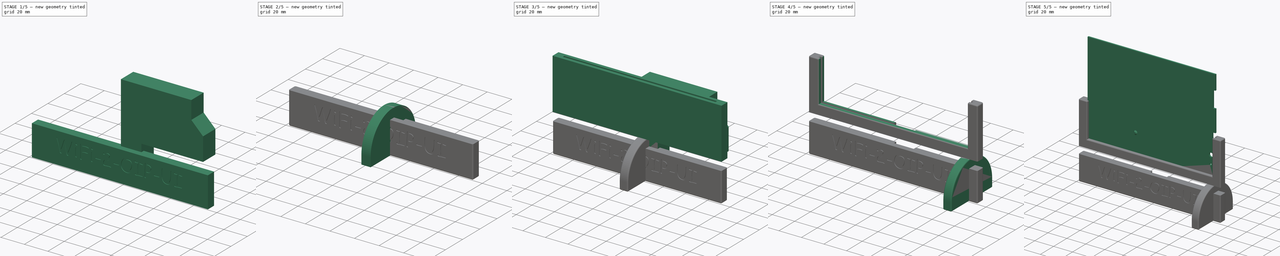
[diagram: build sequence overview — one tinted view per stage of 5, left to right]
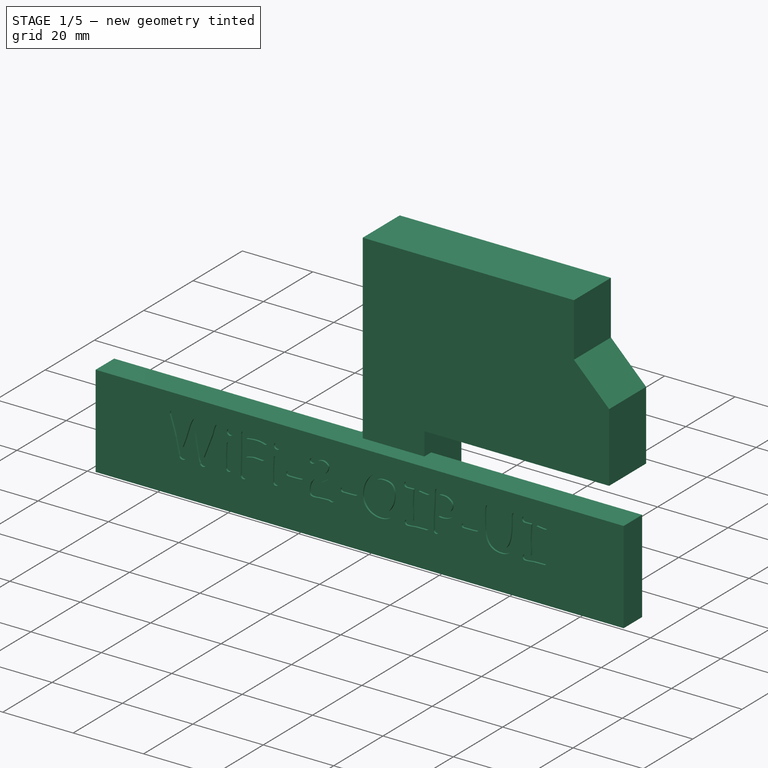
[diagram: stage 1 of 5 — iso view after this stage's code; geometry added in this stage tinted green]
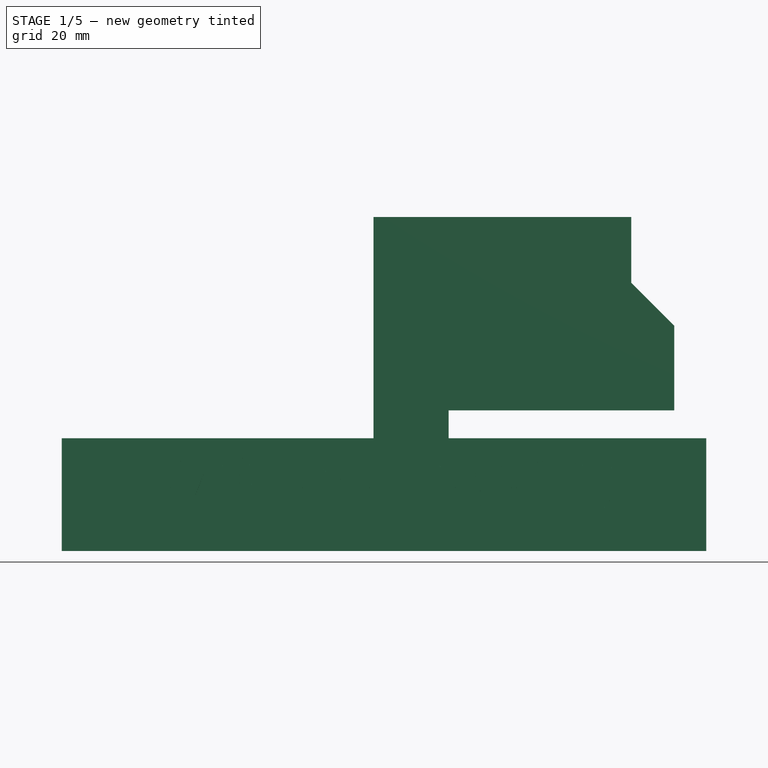
[diagram: stage 1 of 5 — front view after this stage's code; geometry added in this stage tinted green]
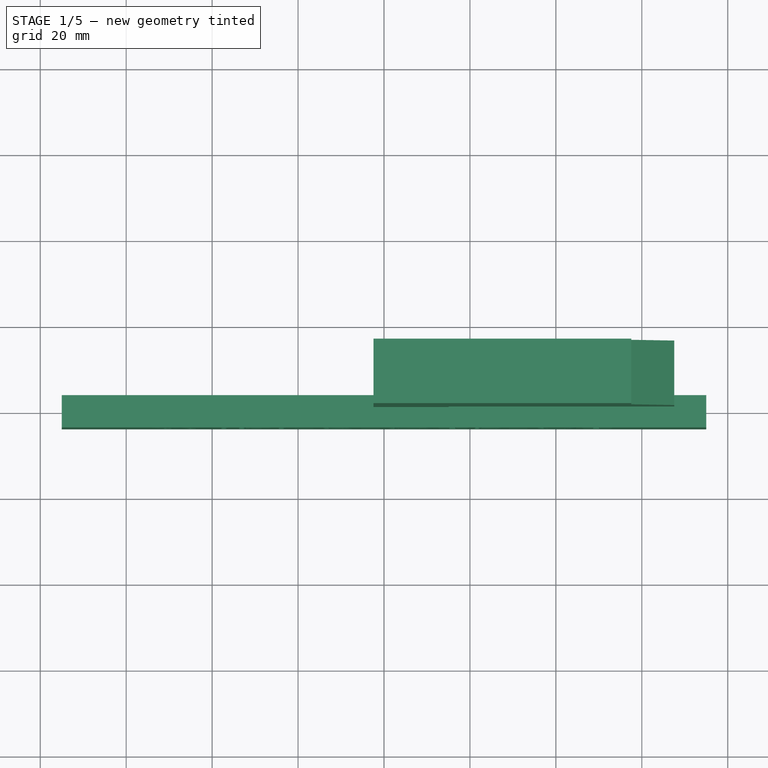
[diagram: stage 1 of 5 — top view after this stage's code; geometry added in this stage tinted green]
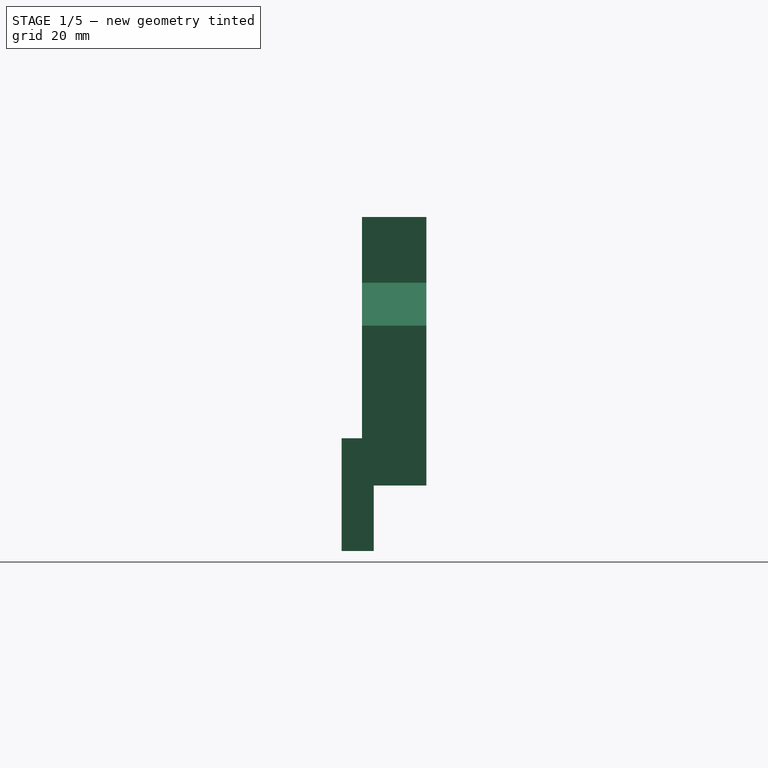
[diagram: stage 1 of 5 — right view after this stage's code; geometry added in this stage tinted green]
FCSTD DOCUMENT  (FreeCAD 0.21R33668 +26 (Git))
Label: WiFi-2-OIP-UI stand
License: All rights reserved
LicenseURL: http://en.wikipedia.org/wiki/All_rights_reserved
objects: Sketcher::SketchObject×9, PartDesign::Body×9, PartDesign::Pad×7, PartDesign::Pocket×3, PartDesign::Chamfer×3, PartDesign::Fillet×3, PartDesign::FeatureBase×3, PartDesign::Boolean×2, App::DocumentObjectGroup×1, Part::Part2DObjectPython×1
note: 56 computed .brp shape members not serialized (recipe doc carries the construction recipe); baked Part::Feature solids carry a one-line shape summary decoded from their .brp

FEATURE [Sketcher::SketchObject] Sketch007
  FullyConstrained = true
  MapMode = 5
  Placement = pos=(0,0,0) rot=(0.57735,0.57735,0.57735;2.0944rad)
  Support = -> [YZ_Plane005]
  sketch-geometry (5):
    g0: LineSegment StartX=-3.75 StartY=-7.5 StartZ=0 EndX=3.75 EndY=-7.5 EndZ=0
    g1: LineSegment StartX=3.75 StartY=-7.5 StartZ=0 EndX=3.75 EndY=-33.75 EndZ=0
    g2: LineSegment StartX=3.75 StartY=-33.75 StartZ=0 EndX=-3.75 EndY=-33.75 EndZ=0
    g3: LineSegment StartX=-3.75 StartY=-33.75 StartZ=0 EndX=-3.75 EndY=-7.5 EndZ=0
    g4: LineSegment StartX=-22.5 StartY=-33.75 StartZ=0 EndX=0 EndY=-33.75 EndZ=0
  constraints (15):
    c: Coincident(g0,g1)
    c: Coincident(g1,g2)
    c: Coincident(g2,g3)
    c: Coincident(g3,g0)
    c: Horizontal(g0)
    c: Vertical(g1)
    c: Vertical(g3)
    c: Symmetric(g1,g2,g-2)
    c: PointOnObject(g4,g-2)
    c: Horizontal(g4)
    c: DistanceY(g4) = -33.75
    c: DistanceX(g4) = -22.5
    c: PointOnObject(g2,g4)
    c: DistanceX(g0,g0) = 7.5
    c: DistanceY(g0) = -7.5
FEATURE [PartDesign::Pad] Pad005
  Direction = (1,-2e-16,3e-16)
  Length = 150
  Length2 = 10
  Midplane = true
  Placement = pos=(0,0,0) rot=(0.57735,0.57735,0.57735;2.0944rad)
  Profile = -> Sketch007
  ReferenceAxis = -> Sketch007 [N_Axis]
  Type = 0
FEATURE [Part::Part2DObjectPython] ShapeString  # Draft 2D object (typed FeaturePython)
  FontFile = <path>
  MakeFace = true
  Placement = pos=(-55,-3.75,-23.59) rot=(1,0,0;1.5708rad)
  Size = 14
  String = WiFi-2-OIP-UI
  Tracking = 0
FEATURE [PartDesign::Pocket] Pocket002
  BaseFeature = -> Pad005
  Direction = (4e-16,1,0)
  Length = 0.5
  Length2 = 5
  Placement = pos=(0,0,0) rot=(0.57735,0.57735,0.57735;2.0944rad)
  Profile = -> ShapeString
  ReferenceAxis = -> ShapeString [N_Axis]
  Type = 0
FEATURE [Sketcher::SketchObject] Sketch008
  FullyConstrained = true
  MapMode = 5
  Placement = pos=(0,0,0) rot=(1,0,0;1.5708rad)
  Support = -> [XZ_Plane006]
  sketch-geometry (9):
    g0: LineSegment StartX=57.55 StartY=44 StartZ=0 EndX=-2.45 EndY=44 EndZ=0
    g1: LineSegment StartX=-2.45 StartY=44 StartZ=0 EndX=-2.45 EndY=-1 EndZ=0
    g2: LineSegment StartX=15.05 StartY=-1 StartZ=0 EndX=67.55 EndY=-1 EndZ=0
    g3: LineSegment StartX=67.55 StartY=-1 StartZ=0 EndX=67.55 EndY=18.7 EndZ=0
    g4: LineSegment StartX=-2.45 StartY=-1 StartZ=0 EndX=-2.45 EndY=-18.5 EndZ=0
    g5: LineSegment StartX=-2.45 StartY=-18.5 StartZ=0 EndX=15.05 EndY=-18.5 EndZ=0
    g6: LineSegment StartX=15.05 StartY=-18.5 StartZ=0 EndX=15.05 EndY=-1 EndZ=0
    g7: LineSegment StartX=57.55 StartY=28.7 StartZ=0 EndX=57.55 EndY=44 EndZ=0
    g8: LineSegment StartX=57.55 StartY=28.7 StartZ=0 EndX=67.55 EndY=18.7 EndZ=0
  constraints (27):
    c: Coincident(g0,g1)
    c: Coincident(g2,g3)
    c: Horizontal(g0)
    c: Horizontal(g2)
    c: Vertical(g1)
    c: Vertical(g3)
    c: DistanceY(g1,g1) = 45
    c: DistanceY(g1,g-1) = 1
    c: Coincident(g4,g1)
    c: Vertical(g4)
    c: Coincident(g5,g4)
    c: Horizontal(g5)
    c: Coincident(g6,g5)
    c: Vertical(g6)
    c: Coincident(g2,g6)
    c: PointOnObject(g1,g2)
    c: Equal(g5,g6)
    c: DistanceY(g6,g6) = 17.5
    c: DistanceX(g1,g2) = 70
    c: Vertical(g7)
    c: Coincident(g0,g7)
    c: DistanceX(g0,g-1) = 2.45
    c: Angle(g-2,g8) = 0.785398
    c: Coincident(g3,g8)
    c: Coincident(g7,g8)
    c: DistanceX(g0) = 57.55
    c: DistanceY(g3,g3) = 19.7
FEATURE [PartDesign::Pad] Pad006
  Direction = (0,-1,-2e-16)
  Length = 15
  Length2 = 10
  Placement = pos=(0,0,0) rot=(1,0,0;1.5708rad)
  Profile = -> Sketch008
  ReferenceAxis = -> Sketch008 [N_Axis]
  Reversed = true
  Type = 0
FEATURE [PartDesign::Body] Body006  label="Electronics cutter"
  Group = -> [Sketch008,Pad006]
  Origin = -> Origin006
  Placement = pos=(0,1,0) rot=(0,0,1;0rad)
  Tip = -> Pad006
FEATURE [PartDesign::FeatureBase] Clone001
  BaseFeature = -> Body006
  Placement = pos=(0,1,0) rot=(0,0,1;0rad)
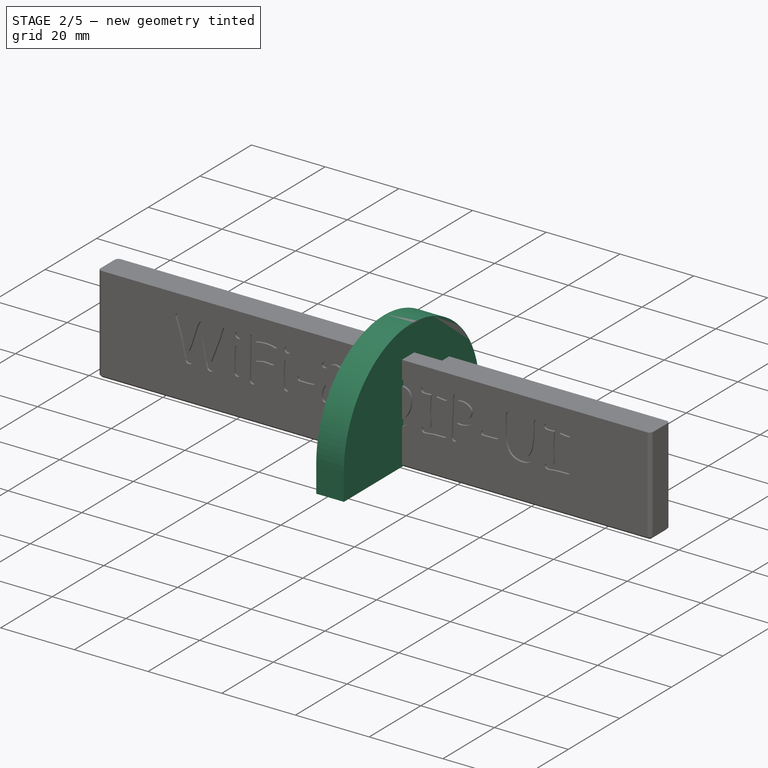
[diagram: stage 2 of 5 — iso view after this stage's code; geometry added in this stage tinted green]
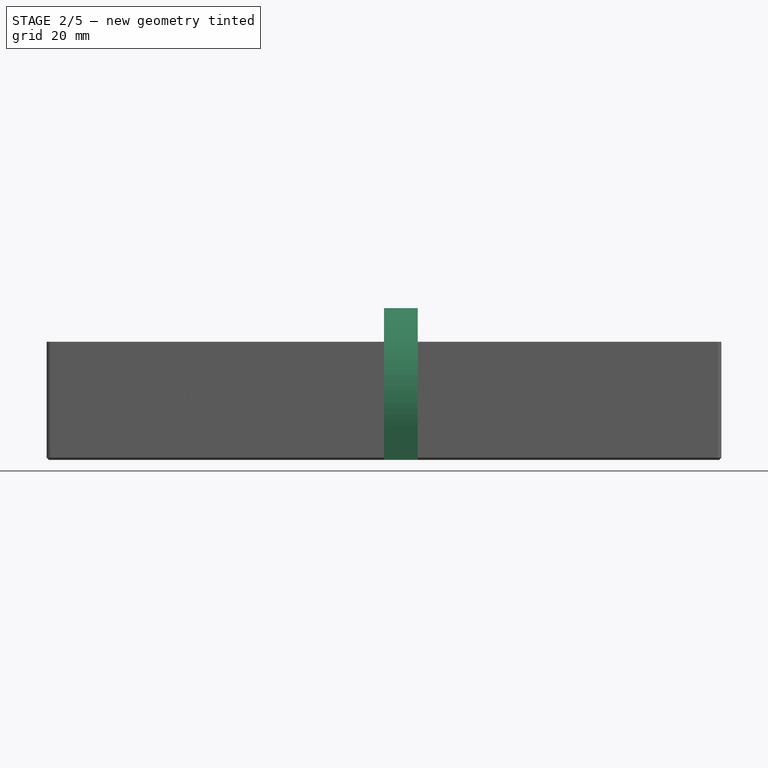
[diagram: stage 2 of 5 — front view after this stage's code; geometry added in this stage tinted green]
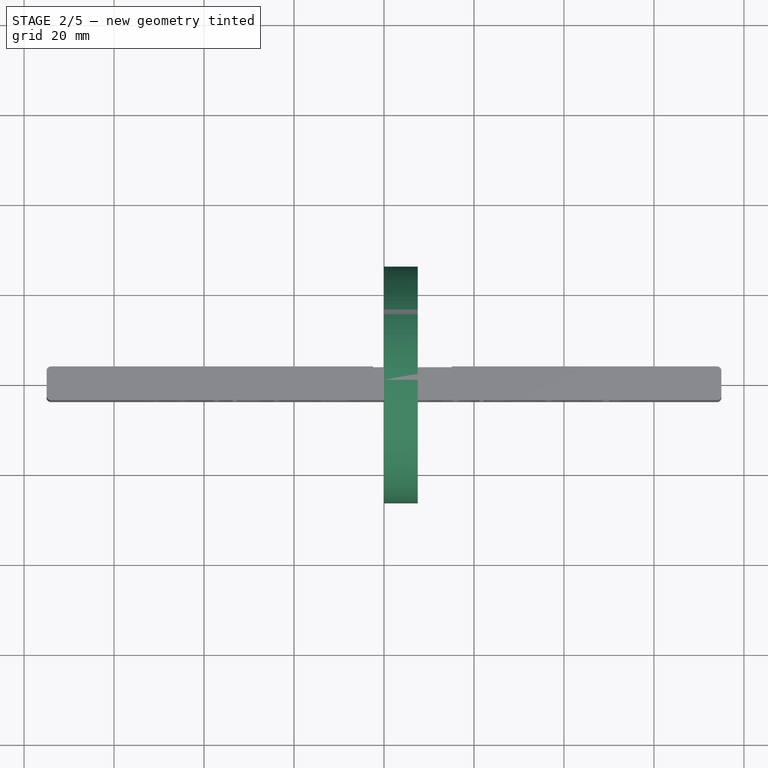
[diagram: stage 2 of 5 — top view after this stage's code; geometry added in this stage tinted green]
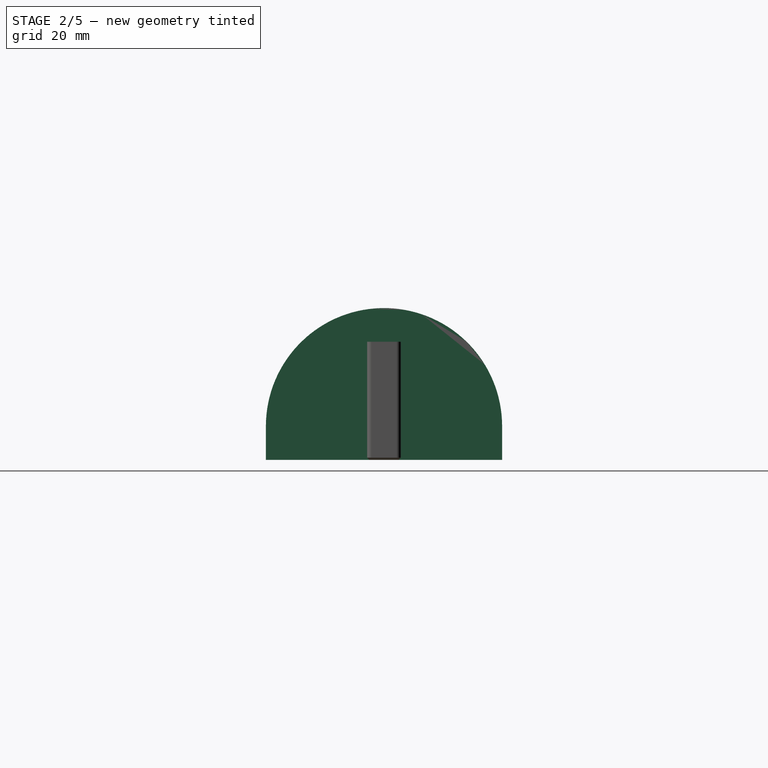
[diagram: stage 2 of 5 — right view after this stage's code; geometry added in this stage tinted green]
FEATURE [PartDesign::Body] Body002  label="pcb screwhole"
  Group = -> [Sketch004,Pad002,Sketch005,Pad003,Chamfer]
  Origin = -> Origin002
  Placement = pos=(0,1,0) rot=(0,0,1;0rad)
  Tip = -> Chamfer
FEATURE [Sketcher::SketchObject] Sketch006
  FullyConstrained = true
  MapMode = 5
  Placement = pos=(0,0,0) rot=(0.57735,0.57735,0.57735;2.0944rad)
  Support = -> [YZ_Plane003]
  sketch-geometry (4):
    g0: LineSegment StartX=-26.25 StartY=-33.75 StartZ=0 EndX=26.25 EndY=-33.75 EndZ=0
    g1: ArcOfCircle CenterX=0 CenterY=-26.25 CenterZ=0 NormalX=0 NormalY=0 NormalZ=1 AngleXU=0 Radius=26.25 StartAngle=1.845e-06 EndAngle=3.14159
    g2: LineSegment StartX=-26.25 StartY=-33.75 StartZ=0 EndX=-26.25 EndY=-26.25 EndZ=0
    g3: LineSegment StartX=26.25 StartY=-33.75 StartZ=0 EndX=26.25 EndY=-26.25 EndZ=0
  constraints (11):
    c: Symmetric(g0,g0,g-2)
    c: PointOnObject(g1,g-2)
    c: Coincident(g2,g0)
    c: Vertical(g2)
    c: Coincident(g3,g0)
    c: DistanceY(g2,g2) = 7.5
    c: Coincident(g1,g3)
    c: DistanceY(g0) = -33.75
    c: Tangent(g1,g2) = 1.5708
    c: Tangent(g1,g-1)
    c: Vertical(g3)
FEATURE [PartDesign::Pad] Pad004
  Direction = (1,-2e-16,3e-16)
  Length = 7.5
  Length2 = 10
  Placement = pos=(0,0,0) rot=(0.57735,0.57735,0.57735;2.0944rad)
  Profile = -> Sketch006
  ReferenceAxis = -> Sketch006 [N_Axis]
  Type = 0
FEATURE [PartDesign::Fillet] Fillet001
  Base = -> Pocket002 [Edge7,Edge296,Edge295,Edge6]
  BaseFeature = -> Pocket002
  Placement = pos=(0,0,0) rot=(0.57735,0.57735,0.57735;2.0944rad)
  Radius = 1
  SupportTransform = false
  UseAllEdges = false
FEATURE [PartDesign::Body] Body007  label="Electronics cutter clone1"
  Group = -> [Clone001]
  Origin = -> Origin007
  Tip = -> Clone001
FEATURE [PartDesign::Boolean] Boolean
  BaseFeature = -> Fillet001
  Group = -> [Body007]
  Type = 1
FEATURE [PartDesign::Body] Body004  label="Foot clone"
  Group = -> [Clone]
  Origin = -> Origin004
  Placement = pos=(-134,0,0) rot=(0,0,1;0rad)
  Tip = -> Clone
FEATURE [PartDesign::Chamfer] Chamfer002
  Angle = 45
  Base = -> Boolean [Edge36]
  BaseFeature = -> Boolean
  ChamferType = 0
  FlipDirection = false
  Size = 0.5
  Size2 = 1
  SupportTransform = false
  UseAllEdges = false
FEATURE [PartDesign::Body] Body005  label="pcb slot support"
  Group = -> [Sketch007,Pad005,ShapeString,Pocket002,Fillet001,Boolean,Chamfer002]
  Origin = -> Origin005
  Tip = -> Chamfer002
note: 1 file-system path scrubbed to <path> (originals preserved in the JSON sidecar)
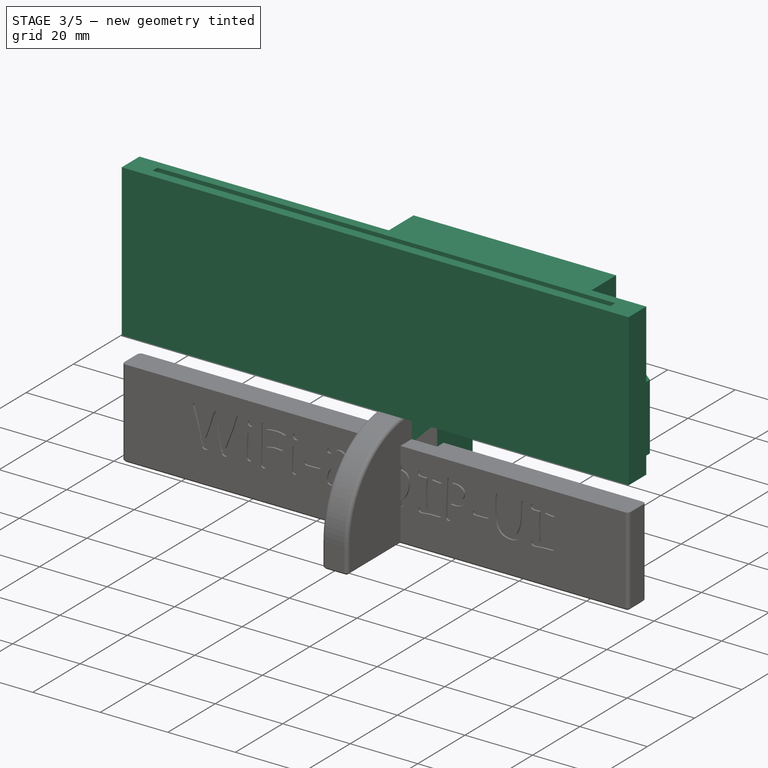
[diagram: stage 3 of 5 — iso view after this stage's code; geometry added in this stage tinted green]
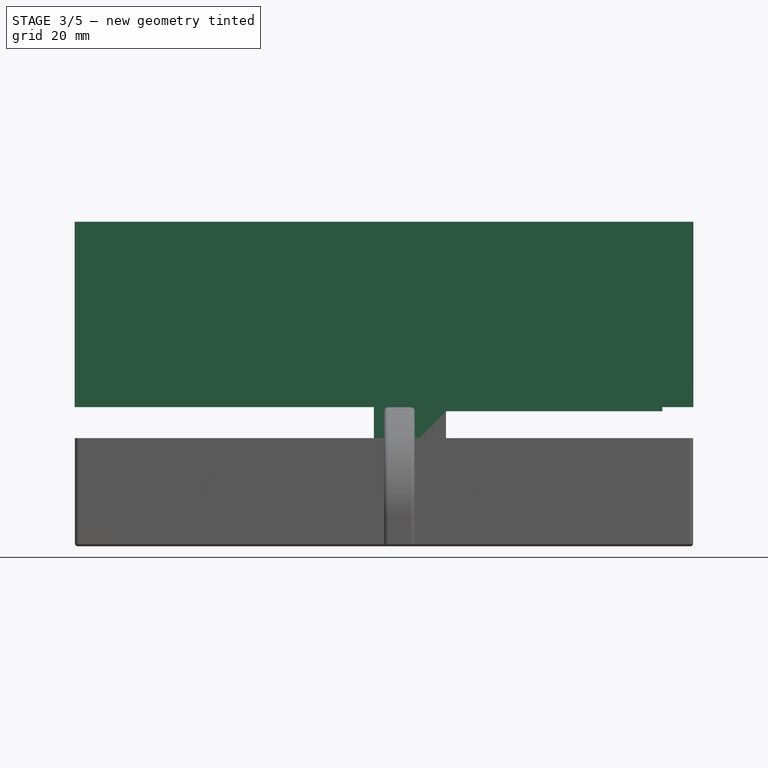
[diagram: stage 3 of 5 — front view after this stage's code; geometry added in this stage tinted green]
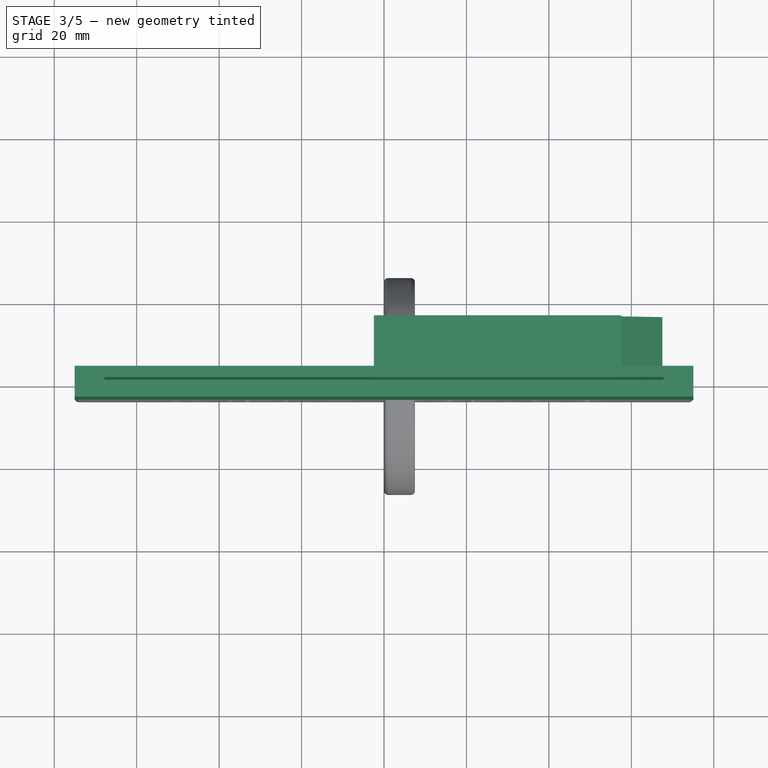
[diagram: stage 3 of 5 — top view after this stage's code; geometry added in this stage tinted green]
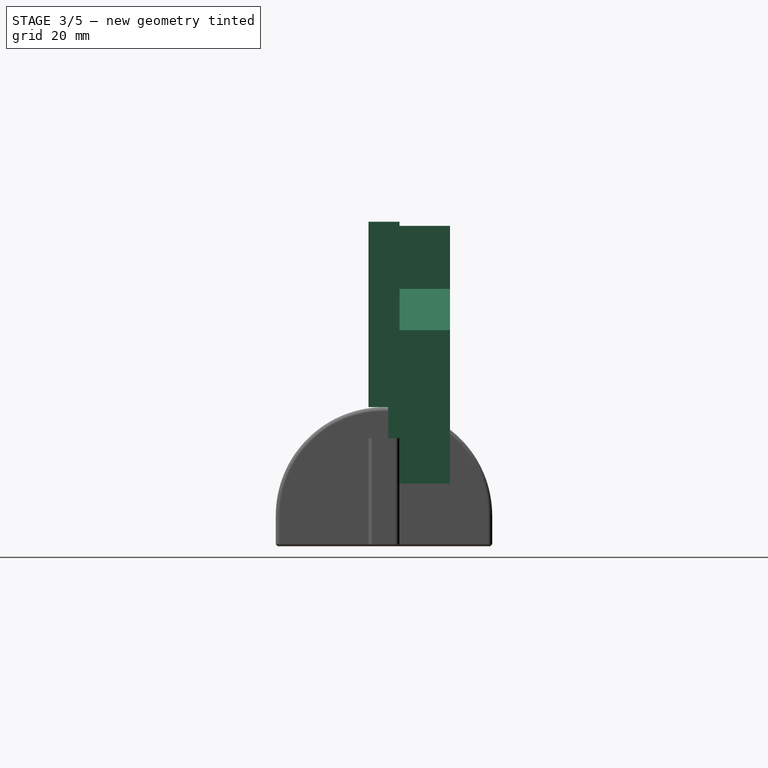
[diagram: stage 3 of 5 — right view after this stage's code; geometry added in this stage tinted green]
FEATURE [PartDesign::Body] Body  label="Display pcb"
  Group = -> [Sketch,Pad]
  Origin = -> Origin
  Tip = -> Pad
FEATURE [App::DocumentObjectGroup] Group  label="Mock"
  Group = -> [Body]
FEATURE [Sketcher::SketchObject] Sketch001
  FullyConstrained = true
  MapMode = 5
  Support = -> [XY_Plane001]
  sketch-geometry (10):
    g0: LineSegment StartX=-75.05 StartY=3.75 StartZ=0 EndX=75.05 EndY=3.75 EndZ=0
    g1: LineSegment StartX=75.05 StartY=3.75 StartZ=0 EndX=75.05 EndY=-3.75 EndZ=0
    g2: LineSegment StartX=75.05 StartY=-3.75 StartZ=0 EndX=-75.05 EndY=-3.75 EndZ=0
    g3: LineSegment StartX=-75.05 StartY=-3.75 StartZ=0 EndX=-75.05 EndY=3.75 EndZ=0
    g4: LineSegment StartX=-67.55 StartY=0.765 StartZ=0 EndX=67.55 EndY=0.765 EndZ=0
    g5: LineSegment StartX=67.55 StartY=0.765 StartZ=0 EndX=67.55 EndY=-0.765 EndZ=0
    g6: LineSegment StartX=67.55 StartY=-0.765 StartZ=0 EndX=-67.55 EndY=-0.765 EndZ=0
    g7: LineSegment StartX=-67.55 StartY=-0.765 StartZ=0 EndX=-67.55 EndY=0.765 EndZ=0
    g8: LineSegment StartX=-67.55 StartY=0.765 StartZ=0 EndX=-67.55 EndY=3.75 EndZ=0
    g9: LineSegment StartX=-67.55 StartY=0.765 StartZ=0 EndX=-75.05 EndY=0.765 EndZ=0
  constraints (26):
    c: Coincident(g0,g1)
    c: Coincident(g1,g2)
    c: Coincident(g2,g3)
    c: Coincident(g3,g0)
    c: Horizontal(g2)
    c: Vertical(g3)
    c: Symmetric(g1,g0,g-1)
    c: Symmetric(g0,g0,g-2)
    c: Coincident(g4,g5)
    c: Coincident(g5,g6)
    c: Coincident(g6,g7)
    c: Coincident(g7,g4)
    c: Horizontal(g4)
    c: Vertical(g5)
    c: Symmetric(g4,g6,g-1)
    c: Symmetric(g5,g6,g-2)
    c: DistanceY(g7,g7) = 1.53
    c: DistanceX(g6,g6) = 135.1
    c: Coincident(g8,g4)
    c: PointOnObject(g8,g0)
    c: Vertical(g8)
    c: Coincident(g9,g4)
    c: PointOnObject(g9,g3)
    c: Horizontal(g9)
    c: DistanceY(g3,g3) = 7.5
    c: DistanceX(g9,g9) = 7.5
FEATURE [PartDesign::Pad] Pad001
  Direction = (0,0,1)
  Length = 45
  Length2 = 10
  Profile = -> Sketch001
  ReferenceAxis = -> Sketch001 [N_Axis]
  Type = 0
FEATURE [Sketcher::SketchObject] Sketch002
  FullyConstrained = true
  MapMode = 5
  Placement = pos=(0,0,45) rot=(0,0,1;0rad)
  Support = -> [Pad001]
  sketch-geometry (10):
    g0: LineSegment StartX=67.8 StartY=1.015 StartZ=0 EndX=-67.8 EndY=1.015 EndZ=0
    g1: LineSegment StartX=-67.8 StartY=1.015 StartZ=0 EndX=-67.8 EndY=-1.015 EndZ=0
    g2: LineSegment StartX=-67.8 StartY=-1.015 StartZ=0 EndX=67.8 EndY=-1.015 EndZ=0
    g3: LineSegment StartX=67.8 StartY=-1.015 StartZ=0 EndX=67.8 EndY=1.015 EndZ=0
    g4: LineSegment StartX=67.55 StartY=0.765 StartZ=0 EndX=-67.55 EndY=0.765 EndZ=0
    g5: LineSegment StartX=-67.55 StartY=0.765 StartZ=0 EndX=-67.55 EndY=-0.765 EndZ=0
    g6: LineSegment StartX=-67.55 StartY=-0.765 StartZ=0 EndX=67.55 EndY=-0.765 EndZ=0
    g7: LineSegment StartX=67.55 StartY=-0.765 StartZ=0 EndX=67.55 EndY=0.765 EndZ=0
    g8: LineSegment StartX=67.55 StartY=0.765 StartZ=0 EndX=67.55 EndY=1.015 EndZ=0
    g9: LineSegment StartX=67.55 StartY=0.765 StartZ=0 EndX=67.8 EndY=0.765 EndZ=0
  constraints (26):
    c: Coincident(g0,g1)
    c: Coincident(g1,g2)
    c: Coincident(g2,g3)
    c: Coincident(g3,g0)
    c: Horizontal(g2)
    c: Vertical(g3)
    c: Symmetric(g1,g0,g-1)
    c: Symmetric(g0,g0,g-2)
    c: Coincident(g4,g5)
    c: Coincident(g5,g6)
    c: Coincident(g6,g7)
    c: Coincident(g7,g4)
    c: Horizontal(g6)
    c: Vertical(g7)
    c: Symmetric(g5,g4,g-1)
    c: Symmetric(g4,g4,g-2)
    c: DistanceY(g7,g7) = 1.53
    c: DistanceX(g4,g4) = 135.1
    c: Coincident(g8,g4)
    c: PointOnObject(g8,g0)
    c: Vertical(g8)
    c: Coincident(g9,g4)
    c: PointOnObject(g9,g3)
    c: Horizontal(g9)
    c: Equal(g9,g8)
    c: DistanceX(g9,g9) = 0.25
FEATURE [PartDesign::Pocket] Pocket
  BaseFeature = -> Pad001
  Direction = (0,0,-1)
  Length = 37.5
  Length2 = 5
  Profile = -> Sketch002
  ReferenceAxis = -> Sketch002 [N_Axis]
  Type = 0
FEATURE [PartDesign::Fillet] Fillet002
  Base = -> Pad004 [Edge10,Edge9]
  BaseFeature = -> Pad004
  Placement = pos=(0,0,0) rot=(0.57735,0.57735,0.57735;2.0944rad)
  Radius = 1
  SupportTransform = false
  UseAllEdges = false
FEATURE [PartDesign::FeatureBase] Clone002
  BaseFeature = -> Body006
  Placement = pos=(0,1,0) rot=(0,0,1;0rad)
FEATURE [PartDesign::Body] Body001  label="pcb slot"
  Group = -> [Sketch001,Pad001,Sketch002,Pocket,Sketch003,Pocket001,Fillet,Boolean001]
  Origin = -> Origin001
  Placement = pos=(0,0,-7.5) rot=(0,0,1;0rad)
  Tip = -> Boolean001
FEATURE [PartDesign::Chamfer] Chamfer001
  Angle = 45
  Base = -> Fillet002 [Edge4]
  BaseFeature = -> Fillet002
  ChamferType = 0
  FlipDirection = false
  Placement = pos=(0,0,0) rot=(0.57735,0.57735,0.57735;2.0944rad)
  Size = 0.5
  Size2 = 1
  SupportTransform = false
  UseAllEdges = false
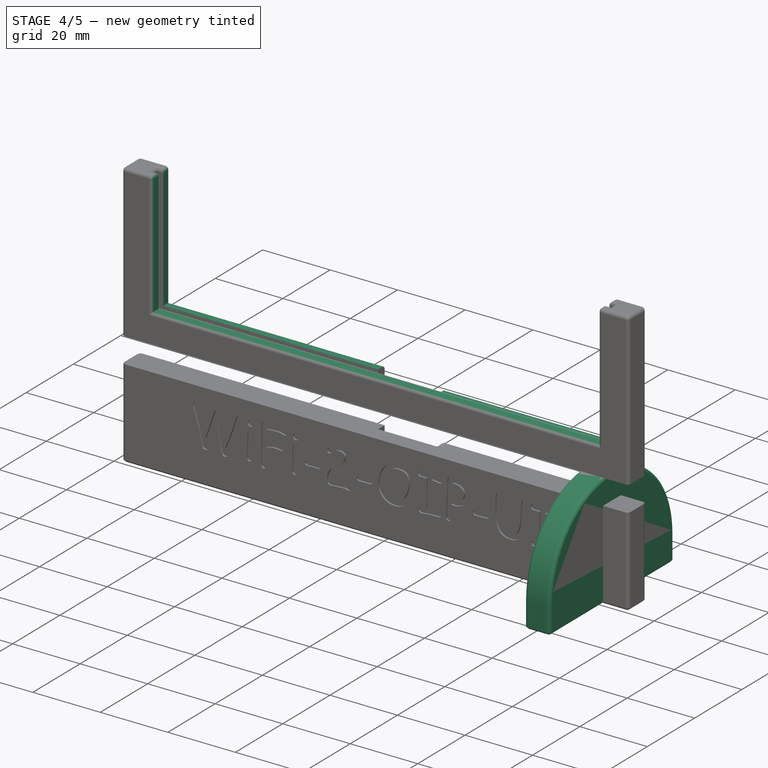
[diagram: stage 4 of 5 — iso view after this stage's code; geometry added in this stage tinted green]
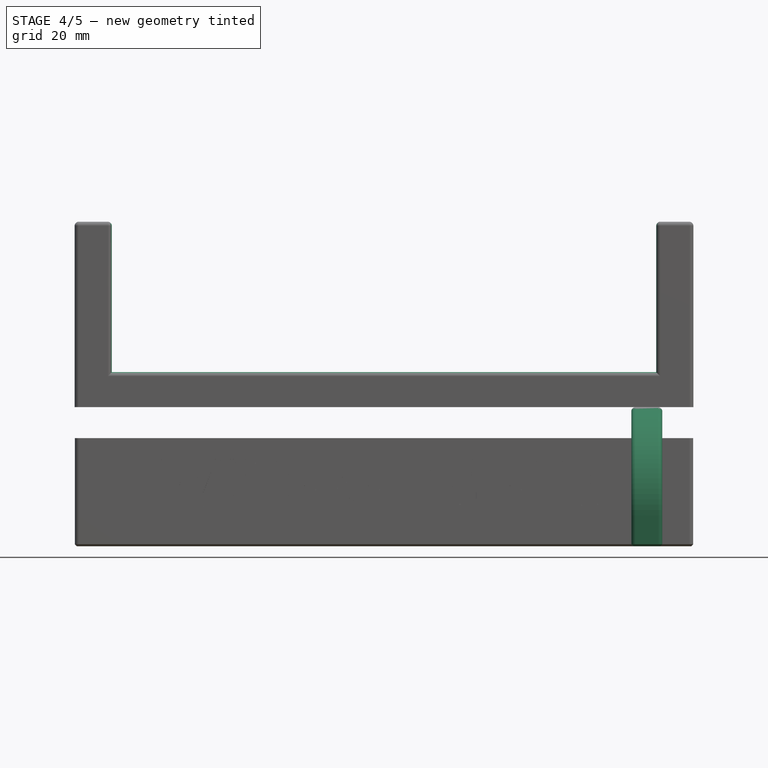
[diagram: stage 4 of 5 — front view after this stage's code; geometry added in this stage tinted green]
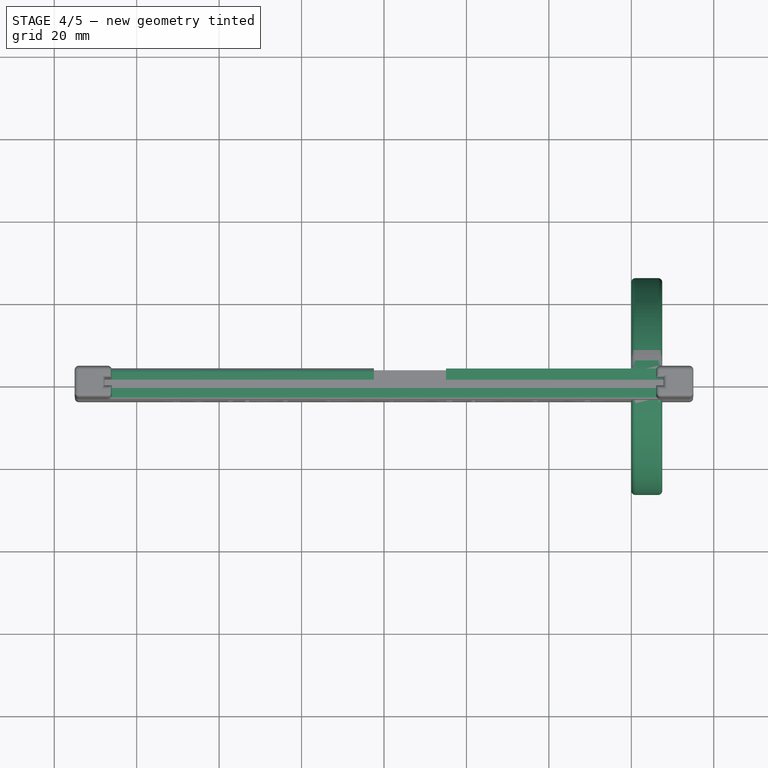
[diagram: stage 4 of 5 — top view after this stage's code; geometry added in this stage tinted green]
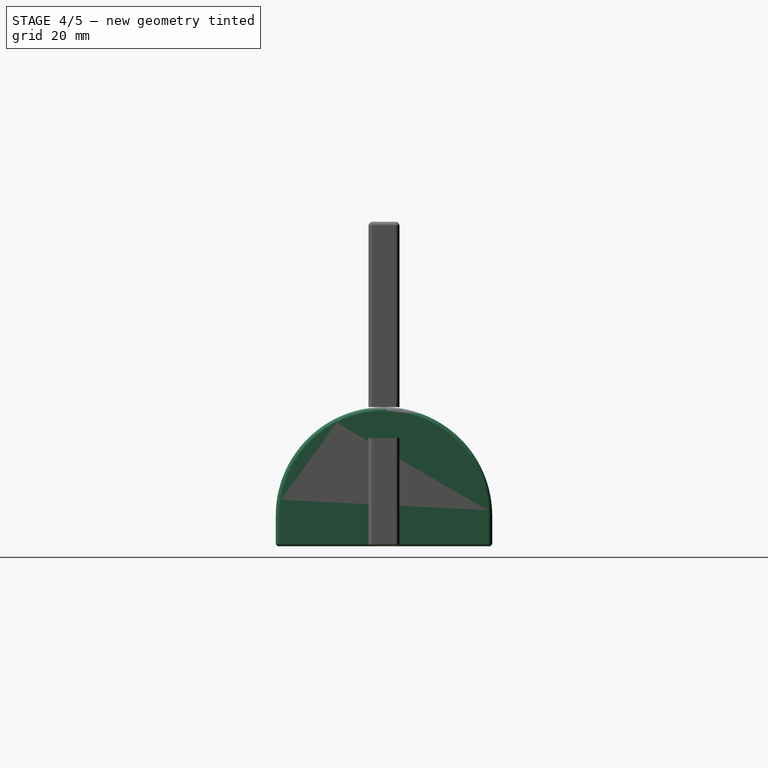
[diagram: stage 4 of 5 — right view after this stage's code; geometry added in this stage tinted green]
FEATURE [Sketcher::SketchObject] Sketch003
  ExternalGeometry = -> [Pocket]
  FullyConstrained = true
  MapMode = 5
  Placement = pos=(0,-3.75,0) rot=(1,0,0;1.5708rad)
  Support = -> [Pocket]
  sketch-geometry (4):
    g0: LineSegment StartX=-66.05 StartY=45 StartZ=0 EndX=66.05 EndY=45 EndZ=0
    g1: LineSegment StartX=66.05 StartY=45 StartZ=0 EndX=66.05 EndY=8.5 EndZ=0
    g2: LineSegment StartX=66.05 StartY=8.5 StartZ=0 EndX=-66.05 EndY=8.5 EndZ=0
    g3: LineSegment StartX=-66.05 StartY=8.5 StartZ=0 EndX=-66.05 EndY=45 EndZ=0
  constraints (11):
    c: Coincident(g0,g1)
    c: Coincident(g1,g2)
    c: Coincident(g2,g3)
    c: Coincident(g3,g0)
    c: Horizontal(g0)
    c: Vertical(g1)
    c: Vertical(g3)
    c: Symmetric(g1,g2,g-2)
    c: PointOnObject(g0,g-3)
    c: DistanceX(g0,g-4) = 1.75
    c: DistanceY(g-4,g1) = 1
FEATURE [PartDesign::Pocket] Pocket001
  BaseFeature = -> Pocket
  Direction = (0,1,-2e-16)
  Length = 5
  Length2 = 5
  Profile = -> Sketch003
  ReferenceAxis = -> Sketch003 [N_Axis]
  Type = 1
FEATURE [PartDesign::Fillet] Fillet
  Base = -> Pocket001 [Face8,Face4,Edge32,Edge8,Edge33,Edge6,Edge5,Edge34,Edge35,Edge12,Edge4,Edge2]
  BaseFeature = -> Pocket001
  Radius = 1
  SupportTransform = false
  UseAllEdges = false
FEATURE [PartDesign::Body] Body008  label="Electronics cutter clone2"
  Group = -> [Clone002]
  Origin = -> Origin008
  Placement = pos=(0,0,7.5) rot=(0,0,1;0rad)
  Tip = -> Clone002
FEATURE [PartDesign::Boolean] Boolean001
  BaseFeature = -> Fillet
  Group = -> [Body008]
  Type = 1
FEATURE [PartDesign::Body] Body003  label="Foot"
  Group = -> [Sketch006,Pad004,Fillet002,Chamfer001]
  Origin = -> Origin003
  Placement = pos=(66.5,0,0) rot=(0,0,1;0rad)
  Tip = -> Chamfer001
FEATURE [PartDesign::FeatureBase] Clone
  BaseFeature = -> Body003
  Placement = pos=(60,0,0) rot=(0,0,1;0rad)
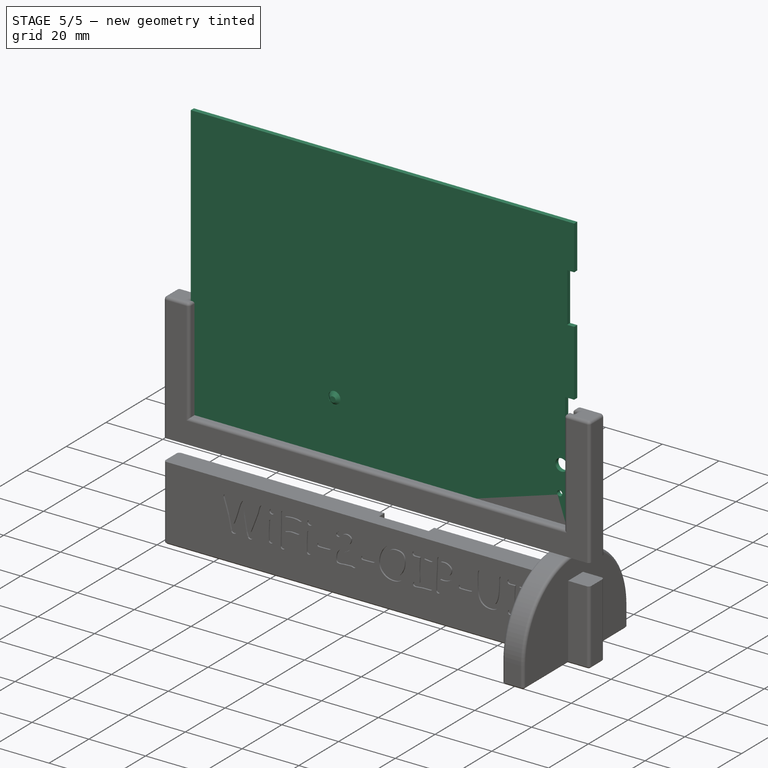
[diagram: stage 5 of 5 — iso view after this stage's code; geometry added in this stage tinted green]
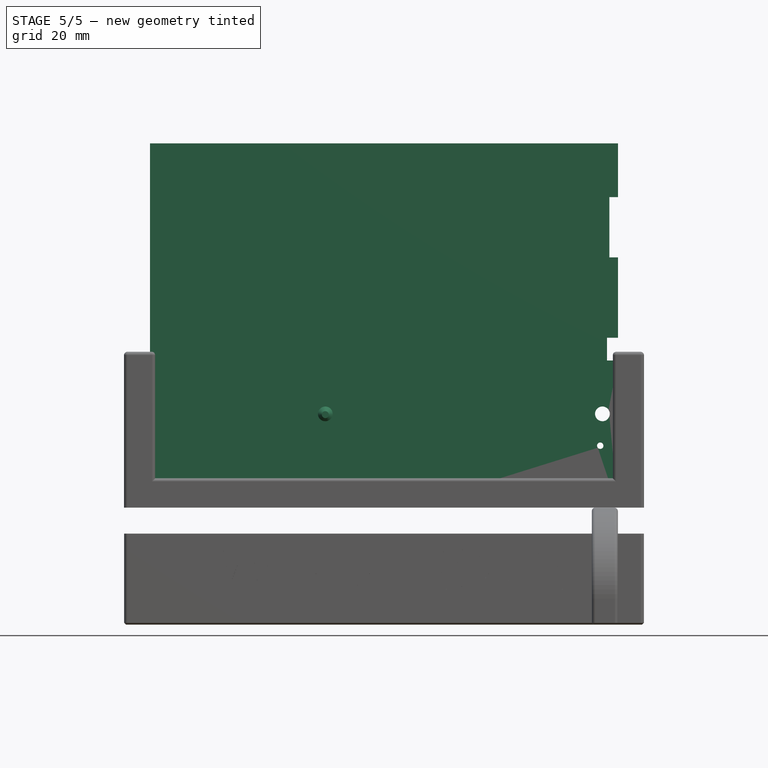
[diagram: stage 5 of 5 — front view after this stage's code; geometry added in this stage tinted green]
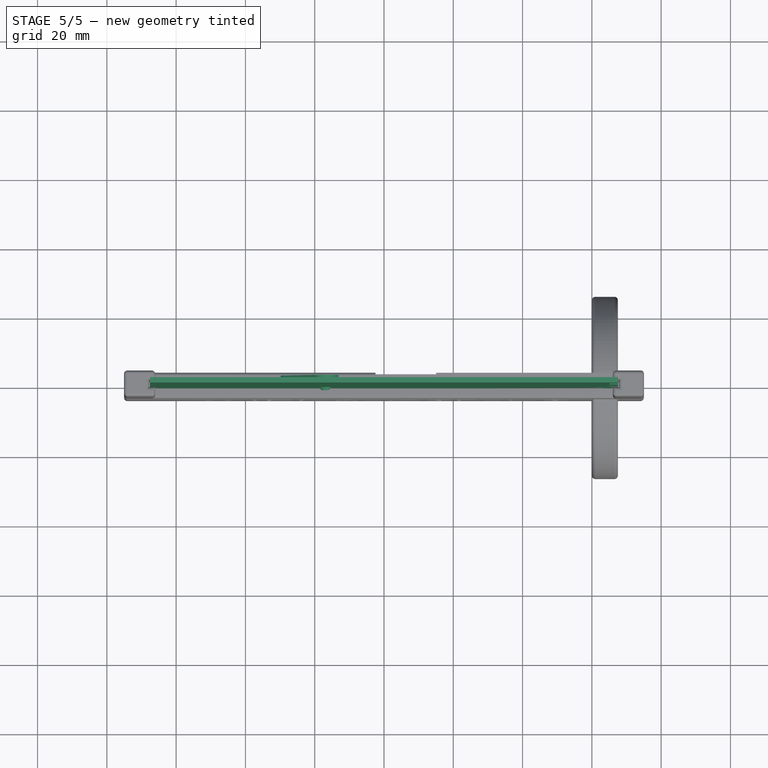
[diagram: stage 5 of 5 — top view after this stage's code; geometry added in this stage tinted green]
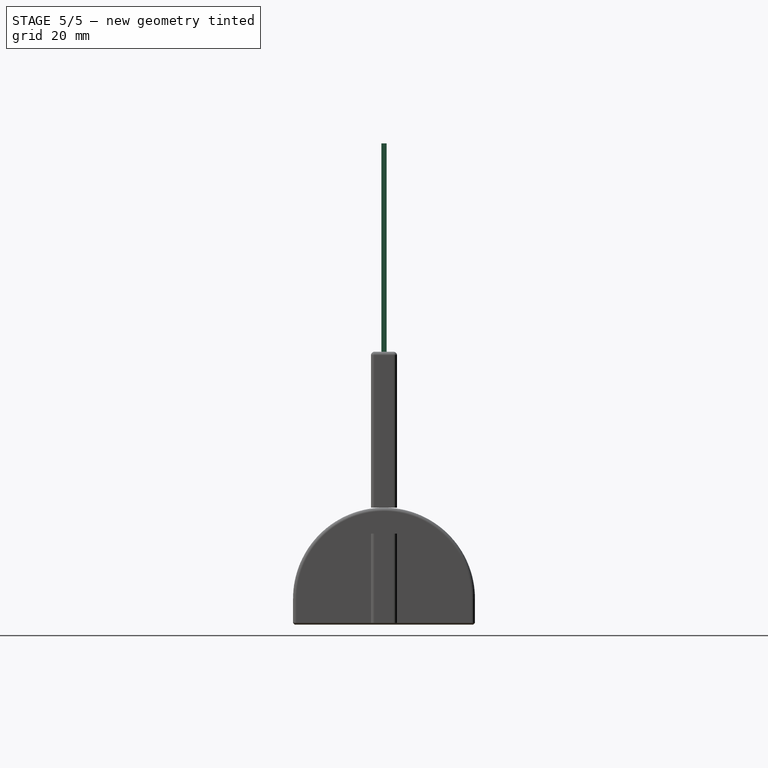
[diagram: stage 5 of 5 — right view after this stage's code; geometry added in this stage tinted green]
FEATURE [Sketcher::SketchObject] Sketch
  FullyConstrained = true
  MapMode = 5
  Placement = pos=(0,0,0) rot=(1,0,0;1.5708rad)
  Support = -> [XZ_Plane]
  sketch-geometry (24):
    g0: LineSegment StartX=-67.55 StartY=0 StartZ=0 EndX=67.55 EndY=0 EndZ=0
    g1: LineSegment StartX=67.55 StartY=0 StartZ=0 EndX=67.55 EndY=42.48 EndZ=0
    g2: LineSegment StartX=67.55 StartY=105.14 StartZ=0 EndX=-67.55 EndY=105.14 EndZ=0
    g3: LineSegment StartX=-67.55 StartY=105.14 StartZ=0 EndX=-67.55 EndY=0 EndZ=0
    g4: LineSegment StartX=67.55 StartY=42.48 StartZ=0 EndX=64.37 EndY=42.48 EndZ=0
    g5: LineSegment StartX=64.37 StartY=42.48 StartZ=0 EndX=64.37 EndY=49.04 EndZ=0
    g6: LineSegment StartX=64.37 StartY=49.04 StartZ=0 EndX=67.55 EndY=49.04 EndZ=0
    g7: LineSegment StartX=67.55 StartY=49.04 StartZ=0 EndX=67.55 EndY=72.25 EndZ=0
    g8: LineSegment StartX=67.55 StartY=72.25 StartZ=0 EndX=65.07 EndY=72.25 EndZ=0
    g9: LineSegment StartX=65.07 StartY=72.25 StartZ=0 EndX=65.07 EndY=89.63 EndZ=0
    g10: LineSegment StartX=65.07 StartY=89.63 StartZ=0 EndX=67.55 EndY=89.63 EndZ=0
    g11: LineSegment StartX=67.55 StartY=89.63 StartZ=0 EndX=67.55 EndY=105.14 EndZ=0
    g12: Circle CenterX=63.045 CenterY=27.075 CenterZ=0 NormalX=0 NormalY=0 NormalZ=1 AngleXU=0 Radius=2.125
    g13: LineSegment StartX=63.045 StartY=0 StartZ=0 EndX=63.045 EndY=24.95 EndZ=0
    g14: LineSegment StartX=65.17 StartY=27.075 StartZ=0 EndX=67.55 EndY=27.075 EndZ=0
    g15: Circle CenterX=18.6 CenterY=4.65 CenterZ=0 NormalX=0 NormalY=0 NormalZ=1 AngleXU=0 Radius=2.25
    g16: LineSegment StartX=18.6 StartY=2.4 StartZ=0 EndX=18.6 EndY=0 EndZ=0
    g17: LineSegment StartX=67.55 StartY=4.65 StartZ=0 EndX=20.85 EndY=4.65 EndZ=0
    g18: Circle CenterX=-16.945 CenterY=27.075 CenterZ=0 NormalX=0 NormalY=0 NormalZ=1 AngleXU=0 Radius=2.125
    g19: LineSegment StartX=-16.945 StartY=24.95 StartZ=0 EndX=-16.945 EndY=0 EndZ=0
    g20: LineSegment StartX=-19.07 StartY=27.075 StartZ=0 EndX=-67.55 EndY=27.075 EndZ=0
    g21: Circle CenterX=62.42 CenterY=17.88 CenterZ=0 NormalX=0 NormalY=0 NormalZ=1 AngleXU=0 Radius=0.92
    g22: LineSegment StartX=63.34 StartY=17.88 StartZ=0 EndX=67.55 EndY=17.88 EndZ=0
    g23: LineSegment StartX=62.42 StartY=16.96 StartZ=0 EndX=62.42 EndY=0 EndZ=0
  constraints (79):
    c: Coincident(g0,g1)
    c: Coincident(g11,g2)
    c: Coincident(g2,g3)
    c: Coincident(g3,g0)
    c: Horizontal(g0)
    c: Vertical(g1)
    c: Vertical(g3)
    c: PointOnObject(g0,g-1)
    c: Symmetric(g11,g2,g-2)
    c: DistanceX(g0,g0) = 135.1
    c: DistanceY(g3,g3) = 105.14
    c: Horizontal(g4)
    c: Coincident(g4,g5)
    c: Vertical(g5)
    c: Coincident(g5,g6)
    c: Horizontal(g6)
    c: Coincident(g1,g4)
    c: Coincident(g7,g6)
    c: Equal(g4,g6)
    c: DistanceY(g5,g5) = 6.56
    c: DistanceX(g6,g6) = 3.18
    c: Vertical(g7)
    c: DistanceY(g1,g1) = 42.48
    c: Horizontal(g8)
    c: Coincident(g8,g9)
    c: Vertical(g9)
    c: Coincident(g9,g10)
    c: Horizontal(g10)
    c: Coincident(g7,g8)
    c: Coincident(g11,g10)
    c: Equal(g10,g8)
    c: Vertical(g11)
    c: DistanceY(g9,g9) = 17.38
    c: DistanceX(g10,g10) = 2.48
    c: DistanceY(g5,g8) = 23.21
    c: PointOnObject(g13,g0)
    c: PointOnObject(g13,g12)
    c: Vertical(g13)
    c: PointOnObject(g12,g13)
    c: DistanceY(g13,g13) = 24.95
    c: Diameter(g12) = 4.25
    c: PointOnObject(g14,g12)
    c: PointOnObject(g14,g1)
    c: Horizontal(g14)
    c: PointOnObject(g12,g14)
    c: DistanceX(g14,g14) = 2.38
    c: Diameter(g15) = 4.5
    c: PointOnObject(g16,g15)
    c: PointOnObject(g16,g0)
    c: Vertical(g16)
    c: PointOnObject(g15,g16)
    c: DistanceY(g16,g16) = 2.4
    c: PointOnObject(g17,g1)
    c: PointOnObject(g17,g15)
    c: Horizontal(g17)
    c: PointOnObject(g15,g17)
    c: DistanceX(g17,g17) = 46.7
    c: PointOnObject(g19,g18)
    c: PointOnObject(g19,g0)
    c: Vertical(g19)
    c: PointOnObject(g18,g19)
    c: PointOnObject(g20,g18)
    c: PointOnObject(g20,g3)
    c: Horizontal(g20)
    c: PointOnObject(g18,g20)
    c: DistanceX(g20,g20) = 48.48
    c: DistanceY(g19,g19) = 24.95
    c: Equal(g18,g12)
    c: Diameter(g21) = 1.84
    c: PointOnObject(g22,g21)
    c: PointOnObject(g22,g1)
    c: Horizontal(g22)
    c: PointOnObject(g21,g22)
    c: PointOnObject(g23,g21)
    c: PointOnObject(g23,g0)
    c: Vertical(g23)
    c: PointOnObject(g21,g23)
    c: DistanceY(g23,g23) = 16.96
    c: DistanceX(g22,g22) = 4.21
FEATURE [PartDesign::Pad] Pad
  Direction = (0,-1,2e-16)
  Length = 1.53
  Length2 = 10
  Midplane = true
  Placement = pos=(0,0,0) rot=(1,0,0;1.5708rad)
  Profile = -> Sketch
  ReferenceAxis = -> Sketch [N_Axis]
  Type = 0
FEATURE [Sketcher::SketchObject] Sketch004
  FullyConstrained = true
  MapMode = 5
  Placement = pos=(0,0,0) rot=(1,0,0;1.5708rad)
  Support = -> [XZ_Plane002]
  sketch-geometry (9):
    g0: Circle CenterX=-16.9468 CenterY=26.85 CenterZ=0 NormalX=0 NormalY=0 NormalZ=1 AngleXU=0 Radius=2.1
    g1: ArcOfCircle CenterX=-16.9468 CenterY=26.85 CenterZ=0 NormalX=0 NormalY=0 NormalZ=1 AngleXU=0 Radius=3.75 StartAngle=5.58505 EndAngle=8.72665
    g2: LineSegment StartX=-19.8195 StartY=29.2605 StartZ=0 EndX=-28.9421 EndY=18.3885 EndZ=0
    g3: LineSegment StartX=-14.0741 StartY=24.4395 StartZ=0 EndX=-18.9421 EndY=18.6381 EndZ=0
    g4: LineSegment StartX=-29.8195 StartY=15.978 StartZ=0 EndX=-29.8195 EndY=0 EndZ=0
    g5: LineSegment StartX=-19.8195 StartY=16.2276 StartZ=0 EndX=-19.8195 EndY=0 EndZ=0
    g6: LineSegment StartX=-29.8195 StartY=0 StartZ=0 EndX=-19.8195 EndY=0 EndZ=0
    g7: ArcOfCircle CenterX=-16.0695 CenterY=16.2276 CenterZ=0 NormalX=0 NormalY=0 NormalZ=1 AngleXU=0 Radius=3.75 StartAngle=2.44346 EndAngle=3.14159
    g8: ArcOfCircle CenterX=-26.0695 CenterY=15.978 CenterZ=0 NormalX=0 NormalY=0 NormalZ=1 AngleXU=0 Radius=3.75 StartAngle=2.44346 EndAngle=3.14159
  constraints (23):
    c: Diameter(g0) = 4.2
    c: DistanceX(g0) = -16.9468
    c: DistanceY(g0) = 26.85
    c: Coincident(g1,g0)
    c: Diameter(g1) = 7.5
    c: Tangent(g2,g1) = -1.5708
    c: Tangent(g3,g1) = 1.5708
    c: Parallel(g3,g2)
    c: PointOnObject(g4,g-1)
    c: Vertical(g4)
    c: PointOnObject(g5,g-1)
    c: Vertical(g5)
    c: Coincident(g6,g4)
    c: Coincident(g6,g5)
    c: Tangent(g3,g7) = -1.5708
    c: Tangent(g5,g7) = -1.5708
    c: Tangent(g2,g8) = -1.5708
    c: Tangent(g4,g8) = -1.5708
    c: Equal(g8,g7)
    c: Equal(g7,g1)
    c: DistanceX(g6,g6) = 10
    c: Angle(g3,g-2) = 0.698132
    c: PointOnObject(g1,g5)
FEATURE [PartDesign::Pad] Pad002
  Direction = (0,-1,-2e-16)
  Length = 2.75
  Length2 = 10
  Placement = pos=(0,0,0) rot=(1,0,0;1.5708rad)
  Profile = -> Sketch004
  ReferenceAxis = -> Sketch004 [N_Axis]
  Reversed = true
  Type = 0
FEATURE [Sketcher::SketchObject] Sketch005
  ExternalGeometry = -> [Pad002]
  FullyConstrained = true
  MapMode = 5
  Placement = pos=(0,0,0) rot=(1,0,0;1.5708rad)
  Support = -> [Pad002]
  sketch-geometry (1):
    g0: Circle CenterX=-16.9468 CenterY=26.85 CenterZ=0 NormalX=0 NormalY=0 NormalZ=1 AngleXU=0 Radius=2.5
  constraints (2):
    c: Coincident(g0,g-3)
    c: Diameter(g0) = 5
FEATURE [PartDesign::Pad] Pad003
  BaseFeature = -> Pad002
  Direction = (0,-1,-2e-16)
  Length = 1.61
  Length2 = 10
  Placement = pos=(0,0,0) rot=(1,0,0;1.5708rad)
  Profile = -> Sketch005
  ReferenceAxis = -> Sketch005 [N_Axis]
  Type = 0
FEATURE [PartDesign::Chamfer] Chamfer
  Angle = 45
  Base = -> Pad003 [Edge27]
  BaseFeature = -> Pad003
  ChamferType = 0
  FlipDirection = false
  Placement = pos=(0,0,0) rot=(1,0,0;1.5708rad)
  Size = 1.5
  Size2 = 1
  SupportTransform = false
  UseAllEdges = false
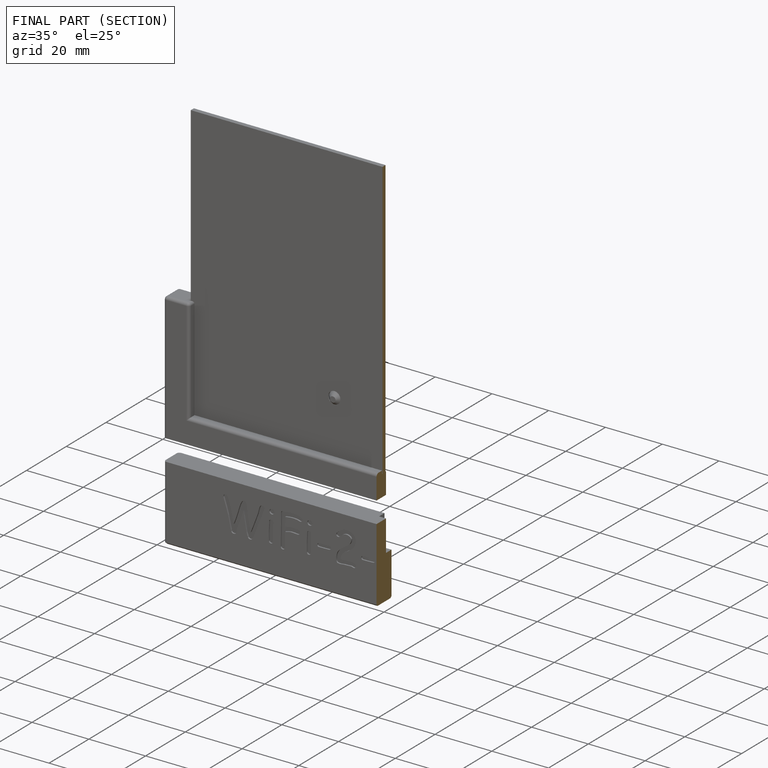
[diagram: finished part — half-section view (interior)]
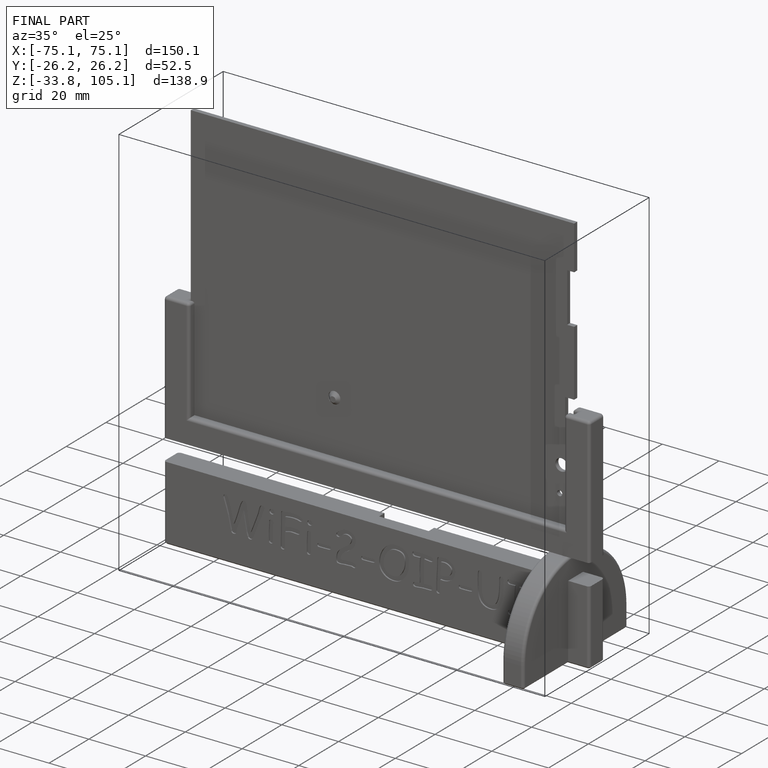
[diagram: finished part — iso view with bounding-box wireframe]
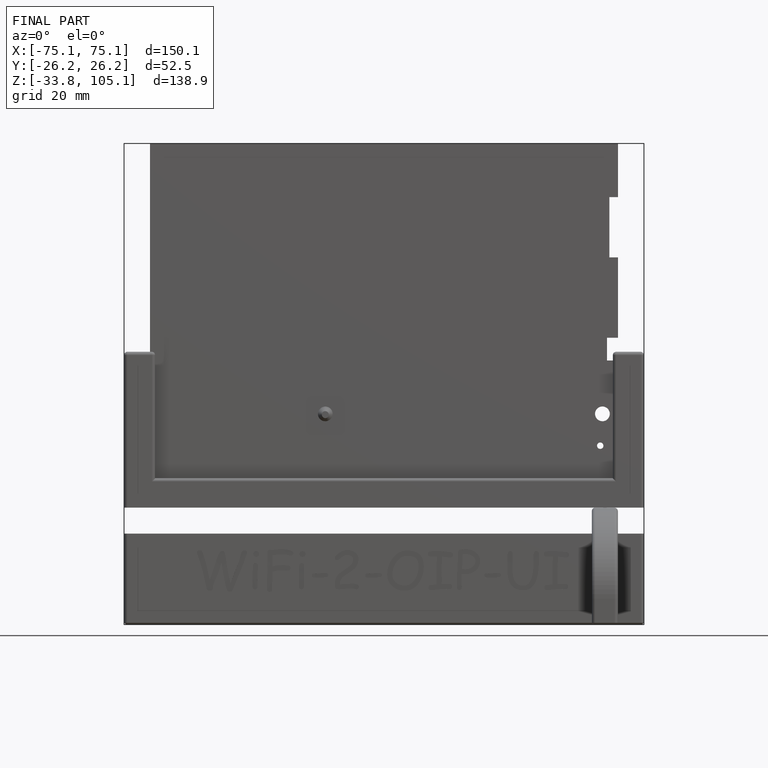
[diagram: finished part — front view with bounding-box wireframe]
